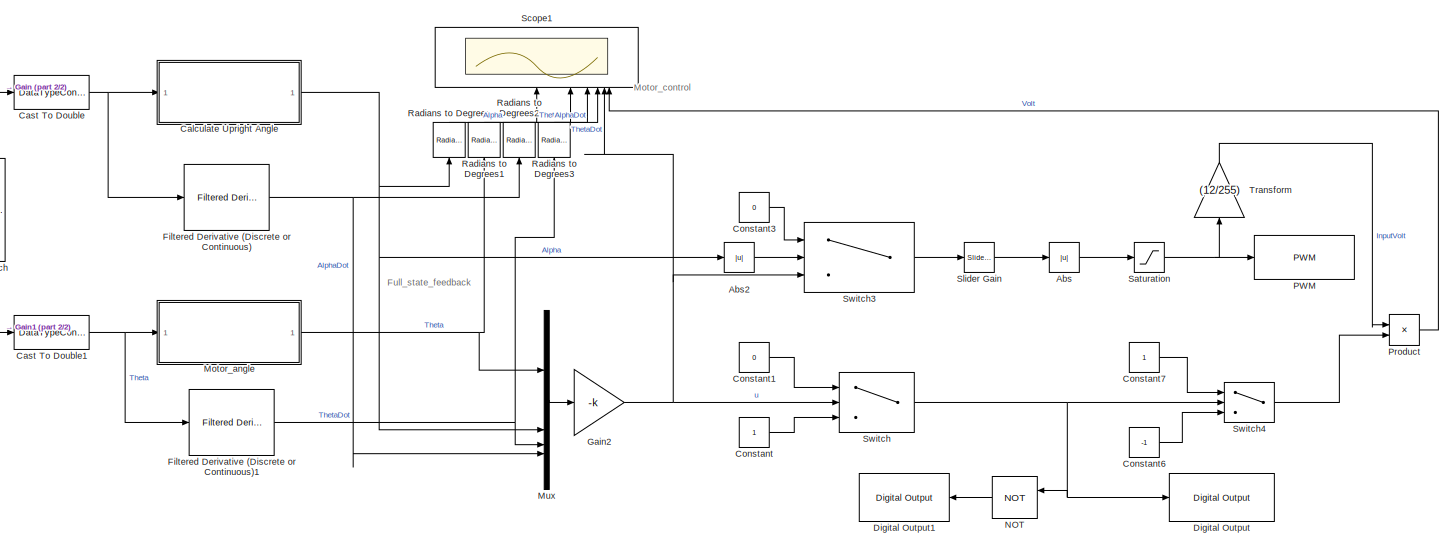
[diagram: root canvas - part 1/2, most of the canvas]
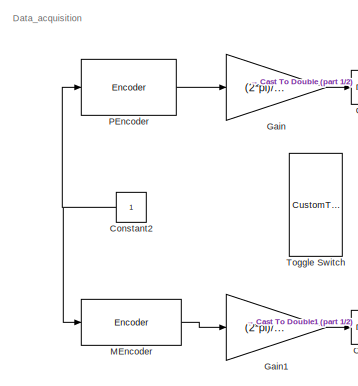
[diagram: root canvas - part 2/2, middle left region]
MODEL slx_08fff8f67691
KIND model
CONFIG AbsTol = auto
CONFIG EnableMultiTasking = on
CONFIG FixedStep = 0.001
CONFIG MaxStep = auto
CONFIG MinStep = auto
CONFIG RelTol = 1e-3
CONFIG SampleTimeConstraint = Unconstrained
CONFIG SolverName = FixedStepDiscrete
CONFIG StartTime = 0.0
CONFIG StopTime = inf
BLOCK [Abs] Abs
  SaturateOnIntegerOverflow = off
BLOCK [Abs] Abs2
  SaturateOnIntegerOverflow = off
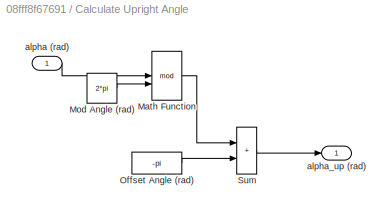
BLOCK [SubSystem] Calculate Upright Angle
BLOCK [Math] Calculate Upright Angle/Math Function
  Operator = mod
  SignedPower = on
BLOCK [Constant] Calculate Upright Angle/Mod Angle (rad)
  Value = 2*pi
BLOCK [Constant] Calculate Upright Angle/Offset Angle (rad)
  Value = -pi
BLOCK [Sum] Calculate Upright Angle/Sum
  IconShape = rectangular
  InputSameDT = on
  OutDataTypeStr = Inherit: Same as first input
  SaturateOnIntegerOverflow = on
BLOCK [Inport] Calculate Upright Angle/alpha (rad)
BLOCK [Outport] Calculate Upright Angle/alpha_up (rad)
  VectorParamsAs1DForOutWhenUnconnected = off
BLOCK [DataTypeConversion] Cast To Double
  OutDataTypeStr = double
  RndMeth = Floor
  SaturateOnIntegerOverflow = off
BLOCK [DataTypeConversion] Cast To Double1
  OutDataTypeStr = double
  RndMeth = Floor
  SaturateOnIntegerOverflow = off
BLOCK [Constant] Constant
BLOCK [Constant] Constant1
  Value = 0
BLOCK [Constant] Constant2
BLOCK [Constant] Constant3
  Value = 0
BLOCK [Constant] Constant6
  Value = -1
BLOCK [Constant] Constant7
BLOCK [Reference] Digital Output  REF=arduinolib/Digital Output
  SourceBlock = arduinolib/Digital Output
  SourceType = Arduino Digital Output
BLOCK [Reference] Digital Output1  REF=arduinolib/Digital Output
  NameLocation = top
  SourceBlock = arduinolib/Digital Output
  SourceType = Arduino Digital Output
BLOCK [Reference] Filtered Derivative (Discrete or Continuous)  REF=eeGeneralControl/Filtered Derivative
(Discrete or Continuous)
  SourceBlock = eeGeneralControl/Filtered Derivative\n(Discrete or Continuous)
  SourceType = Filtered Derivative (Discrete or Continuous)
BLOCK [Reference] Filtered Derivative (Discrete or Continuous)1  REF=eeGeneralControl/Filtered Derivative
(Discrete or Continuous)
  SourceBlock = eeGeneralControl/Filtered Derivative\n(Discrete or Continuous)
  SourceType = Filtered Derivative (Discrete or Continuous)
BLOCK [Gain] Gain
  Gain = (2*pi)/(4*600)
BLOCK [Gain] Gain1
  Gain = (2*pi)/(4*374)
BLOCK [Gain] Gain2
  Gain = -k
  Multiplication = Matrix(K*u) (u vector)
BLOCK [Reference] MEncoder  REF=arduinosensorlib/Encoder
  SourceBlock = arduinosensorlib/Encoder
  SourceType = Arduino Rotary Encoder
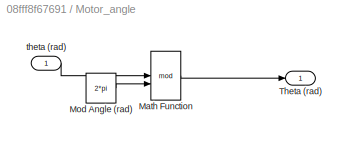
BLOCK [SubSystem] Motor_angle
BLOCK [Math] Motor_angle/Math Function
  Operator = mod
  SignedPower = on
BLOCK [Constant] Motor_angle/Mod Angle (rad)
  Value = 2*pi
BLOCK [Outport] Motor_angle/Theta (rad)
  VectorParamsAs1DForOutWhenUnconnected = off
BLOCK [Inport] Motor_angle/theta (rad)
BLOCK [Mux] Mux
  DisplayOption = bar
BLOCK [Logic] NOT
  AllPortsSameDT = off
  IconShape = distinctive
  NameLocation = top
  Operator = NOT
  OutDataTypeStr = boolean
BLOCK [Reference] PEncoder  REF=arduinosensorlib/Encoder
  SourceBlock = arduinosensorlib/Encoder
  SourceType = Arduino Rotary Encoder
BLOCK [Reference] PWM  REF=arduinolib/PWM
  SourceBlock = arduinolib/PWM
  SourceType = Arduino PWM
BLOCK [Product] Product
BLOCK [Reference] Radians to Degrees  REF=simulink_extras/Transformations/Radians
to Degrees
  NameLocation = right
  SourceBlock = simulink_extras/Transformations/Radians\nto Degrees
  SourceType = RadiansToDegrees
BLOCK [Reference] Radians to Degrees1  REF=simulink_extras/Transformations/Radians
to Degrees
  NameLocation = right
  SourceBlock = simulink_extras/Transformations/Radians\nto Degrees
  SourceType = RadiansToDegrees
BLOCK [Reference] Radians to Degrees2  REF=simulink_extras/Transformations/Radians
to Degrees
  NameLocation = right
  SourceBlock = simulink_extras/Transformations/Radians\nto Degrees
  SourceType = RadiansToDegrees
BLOCK [Reference] Radians to Degrees3  REF=simulink_extras/Transformations/Radians
to Degrees
  NameLocation = right
  SourceBlock = simulink_extras/Transformations/Radians\nto Degrees
  SourceType = RadiansToDegrees
BLOCK [Saturate] Saturation
  LowerLimit = 0
  UpperLimit = 255
BLOCK [Scope] Scope1
  Floating = off
  NameLocation = right
  NumInputPorts = 6
  ScopeSpecificationString = Simulink.scopes.TimeScopeBlockCfg('CurrentConfiguration', extmgr.ConfigurationSet(extmgr.Configuration('Core','General UI',true),extmgr.Configuration('Core','Source UI',true),extmgr.Configuration('Sources','WiredSimulink',true,'DataLoggingVariableName','ScopeData3','DataLoggingSaveFormat','StructureWithTime'),extmgr.Configuration('Visuals','Time Domain',true,'TimeAxisLabels','All','SerializedDispl...<+6256ch>
BLOCK [Reference] Slider Gain  REF=simulink/Math
Operations/Slider
Gain
  SourceBlock = simulink/Math\nOperations/Slider\nGain
  SourceType = Slider Gain
BLOCK [Switch] Switch
  Criteria = u2 > Threshold
  InputSameDT = off
  SaturateOnIntegerOverflow = off
BLOCK [Switch] Switch3
  Criteria = u2 > Threshold
  InputSameDT = off
  SaturateOnIntegerOverflow = off
  Threshold = pi/7
BLOCK [Switch] Switch4
  Criteria = u2 > Threshold
  InputSameDT = off
  SaturateOnIntegerOverflow = off
  Threshold = 0.5
BLOCK [CustomTuningWebBlock] Toggle Switch
  Configuration = {"components":[{"name":"CustomSwitchStateComponent","settings":{"position":[0,0,1,1],"showAllLabels":1,"states":[{"HitRegion":{"position":[0.5,0,1,0.5]},"Image":{"position":[0,0.24928571428571428,0.5014285714285714,1],"size":[0.5014285714285714,1],"src":"data:image\/svg+xml;base64,PHN2ZyB4bWxucz0iaHR0cDovL3d3dy53My5vcmcvMjAwMC9zdmciIHhtbG5zOnhsaW5rPSJodHRwOi8vd3d3LnczLm9yZy8xOTk5L3hsaW5rIiB2aWV3Qm...<+9138ch>
  LabelPosition = Hide
  ShowInitialText = on
BLOCK [Gain] Transform
  Gain = (12/255)
  NameLocation = right
ANNOTATION (root): Data_acquisition
ANNOTATION (root): Full_state_feedback
ANNOTATION (root): Motor_control
LINE Abs2:1 -> Switch3:2
LINE Abs:1 -> Saturation:1
LINE Calculate Upright Angle/Math Function:1 -> Calculate Upright Angle/Sum:1
LINE Calculate Upright Angle/Mod Angle (rad):1 -> Calculate Upright Angle/Math Function:2
LINE Calculate Upright Angle/Offset Angle (rad):1 -> Calculate Upright Angle/Sum:2
LINE Calculate Upright Angle/Sum:1 -> Calculate Upright Angle/alpha_up (rad):1
LINE Calculate Upright Angle/alpha (rad):1 -> Calculate Upright Angle/Math Function:1
NET Calculate Upright Angle:1 -> Abs2:1, Mux:2, Radians to Degrees:1
NET Cast To Double1:1 -> Filtered Derivative (Discrete or Continuous)1:1, Motor_angle:1
NET Cast To Double:1 -> Calculate Upright Angle:1, Filtered Derivative (Discrete or Continuous):1
LINE Constant1:1 -> Switch:1
NET Constant2:1 -> MEncoder:1, PEncoder:1
LINE Constant3:1 -> Switch3:1
LINE Constant6:1 -> Switch4:3
LINE Constant7:1 -> Switch4:1
LINE Constant:1 -> Switch:3
NET Filtered Derivative (Discrete or Continuous)1:1 -> Mux:3, Radians to Degrees3:1
NET Filtered Derivative (Discrete or Continuous):1 -> Mux:4, Radians to Degrees2:1
LINE Gain1:1 -> Cast To Double1:1
NET Gain2:1 -> Scope1:5, Switch3:3, Switch:2
LINE Gain:1 -> Cast To Double:1
LINE MEncoder:1 -> Gain1:1
LINE Motor_angle/Math Function:1 -> Motor_angle/Theta (rad):1
LINE Motor_angle/Mod Angle (rad):1 -> Motor_angle/Math Function:2
LINE Motor_angle/theta (rad):1 -> Motor_angle/Math Function:1
NET Motor_angle:1 -> Mux:1, Radians to Degrees1:1
LINE Mux:1 -> Gain2:1
LINE NOT:1 -> Digital Output1:1
LINE PEncoder:1 -> Gain:1
LINE Product:1 -> Scope1:6
LINE Radians to Degrees1:1 -> Scope1:2
LINE Radians to Degrees2:1 -> Scope1:3
LINE Radians to Degrees3:1 -> Scope1:4
LINE Radians to Degrees:1 -> Scope1:1
NET Saturation:1 -> PWM:1, Transform:1
LINE Slider Gain:1 -> Abs:1
LINE Switch3:1 -> Slider Gain:1
LINE Switch4:1 -> Product:2
NET Switch:1 -> Digital Output:1, NOT:1, Switch4:2
LINE Transform:1 -> Product:1
note: NET lines group one-source signal fan-out (src -> all destinations, sorted); 1:1 wires keep LINE
